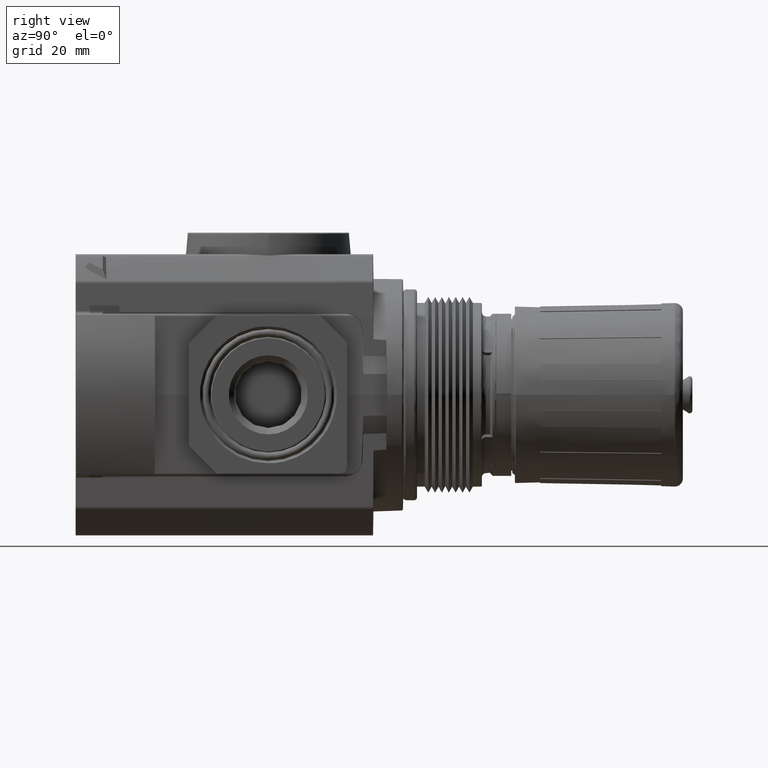
[diagram: clean part render]
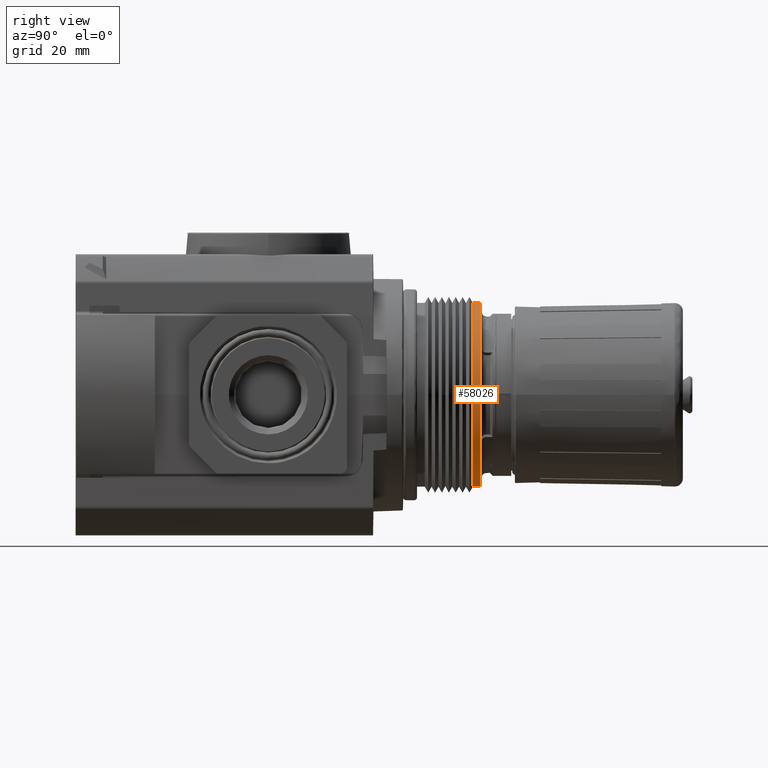
[diagram: same view with one face highlighted and labeled with its STEP entity id]
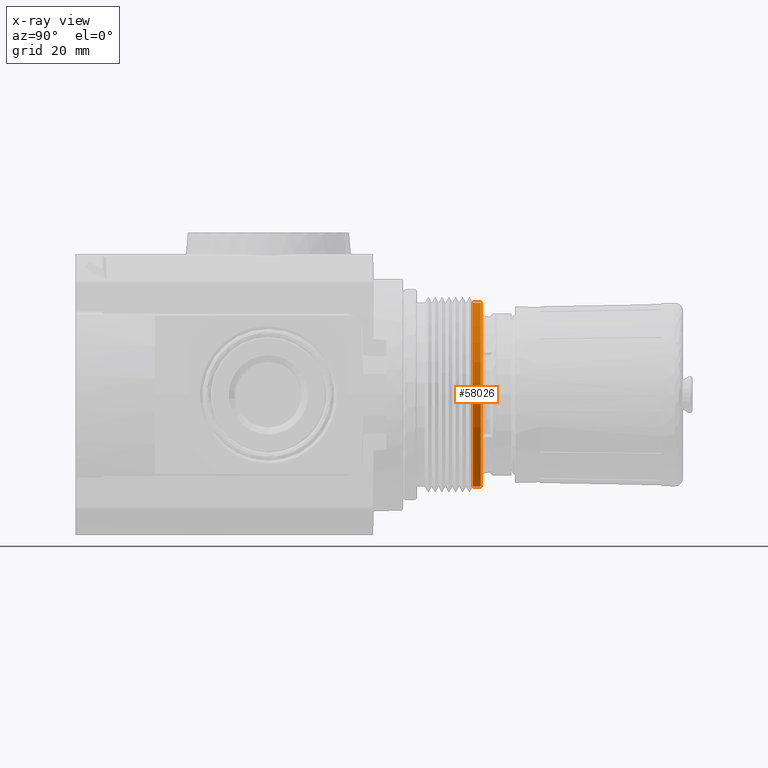
[diagram: x-ray of the same camera — body ghosted, the highlighted face saturated]
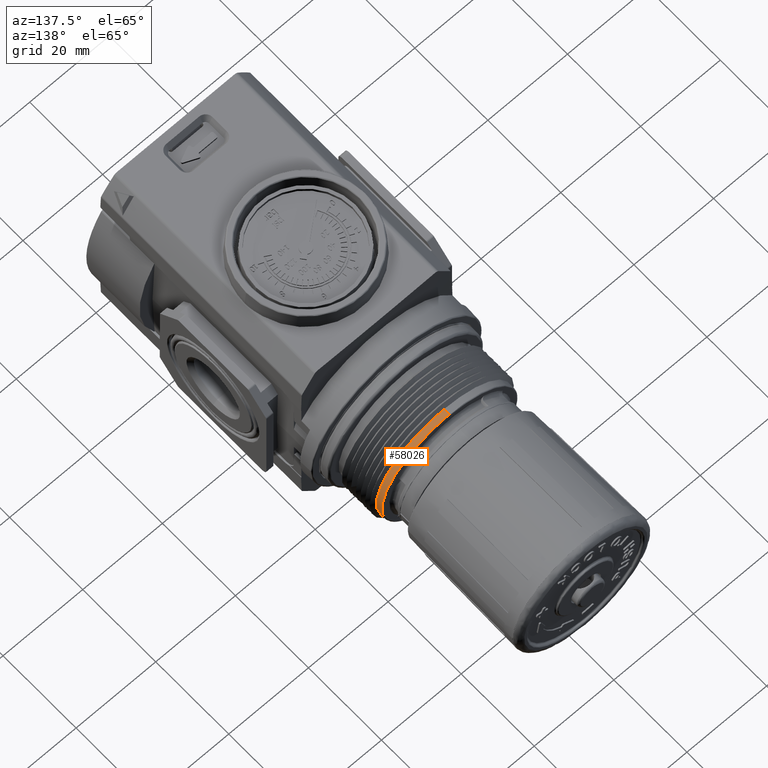
[diagram: same view with one face highlighted and labeled with its STEP entity id]
A machine part, right view. The second image highlights one B-rep face of the part: STEP entity #58026.
The next image is the same camera in x-ray: the body ghosted, the highlighted face saturated — about 0% of this face is hidden behind the body in this view.
A second angle (auxiliary view) of the same face is appended — the face is thin or edge-on in the first view.
In plain terms, the highlighted cylindrical surface (partial cylindrical patch) has radius 17 mm, axis along (-0, 1, 0).
Its self-contained STEP definition (entity closure, byte-faithful):
#3237 = DIRECTION ( 'NONE',  ( -0.000000000000000000, 1.000000000000000000, 0.000000000000000000 ) ) ;
#4351 = FACE_OUTER_BOUND ( 'NONE', #40795, .T. ) ;
#5356 = DIRECTION ( 'NONE',  ( -0.000000000000000000, 1.000000000000000000, 0.000000000000000000 ) ) ;
#5661 = EDGE_CURVE ( 'NONE', #59638, #20913, #60652, .T. ) ;
#8447 = DIRECTION ( 'NONE',  ( 0.000000000000000000, 0.000000000000000000, -1.000000000000000000 ) ) ;
#11213 = AXIS2_PLACEMENT_3D ( 'NONE', #48468, #14113, #8447 ) ;
#11580 = LINE ( 'NONE', #34600, #48883 ) ;
#14113 = DIRECTION ( 'NONE',  ( -0.000000000000000000, 1.000000000000000000, 0.000000000000000000 ) ) ;
#15062 = AXIS2_PLACEMENT_3D ( 'NONE', #26253, #3237, #54938 ) ;
#19031 = VERTEX_POINT ( 'NONE', #67123 ) ;
#19920 = EDGE_CURVE ( 'NONE', #55751, #19031, #54592, .T. ) ;
#20310 = CARTESIAN_POINT ( 'NONE',  ( 0.000000000000000000, 2.893153891709122405, 0.000000000000000000 ) ) ;
#20913 = VERTEX_POINT ( 'NONE', #56167 ) ;
#22386 = ORIENTED_EDGE ( 'NONE', *, *, #44724, .T. ) ;
#26253 = CARTESIAN_POINT ( 'NONE',  ( 0.000000000000000000, 1.983464566929133976, 0.000000000000000000 ) ) ;
#28106 = AXIS2_PLACEMENT_3D ( 'NONE', #20310, #43330, #66393 ) ;
#33025 = CYLINDRICAL_SURFACE ( 'NONE', #15062, 0.6692913385826771977 ) ;
#34600 = CARTESIAN_POINT ( 'NONE',  ( 8.196454954923230515E-17, 1.983464566929133976, -0.6692913385826771977 ) ) ;
#40795 = EDGE_LOOP ( 'NONE', ( #54910, #22386, #51740, #72001 ) ) ;
#42788 = EDGE_CURVE ( 'NONE', #59638, #55751, #45723, .T. ) ;
#43330 = DIRECTION ( 'NONE',  ( -0.000000000000000000, 1.000000000000000000, 0.000000000000000000 ) ) ;
#44724 = EDGE_CURVE ( 'NONE', #20913, #19031, #11580, .T. ) ;
#45723 = LINE ( 'NONE', #51021, #74104 ) ;
#48468 = CARTESIAN_POINT ( 'NONE',  ( 0.000000000000000000, 2.950787401574803237, 0.000000000000000000 ) ) ;
#48883 = VECTOR ( 'NONE', #50854, 39.37007874015748143 ) ;
#50854 = DIRECTION ( 'NONE',  ( -0.000000000000000000, 1.000000000000000000, 0.000000000000000000 ) ) ;
#51021 = CARTESIAN_POINT ( 'NONE',  ( 0.000000000000000000, 1.983464566929133976, 0.6692913385826771977 ) ) ;
#51740 = ORIENTED_EDGE ( 'NONE', *, *, #19920, .F. ) ;
#54592 = CIRCLE ( 'NONE', #11213, 0.6692913385826771977 ) ;
#54910 = ORIENTED_EDGE ( 'NONE', *, *, #5661, .T. ) ;
#54938 = DIRECTION ( 'NONE',  ( 0.000000000000000000, 0.000000000000000000, 1.000000000000000000 ) ) ;
#55751 = VERTEX_POINT ( 'NONE', #59733 ) ;
#56167 = CARTESIAN_POINT ( 'NONE',  ( 8.196454954923230515E-17, 2.893153891709122405, -0.6692913385826771977 ) ) ;
#58026 = ADVANCED_FACE ( 'NONE', ( #4351 ), #33025, .T. ) ;
#59638 = VERTEX_POINT ( 'NONE', #71500 ) ;
#59733 = CARTESIAN_POINT ( 'NONE',  ( 0.000000000000000000, 2.950787401574803237, 0.6692913385826771977 ) ) ;
#60652 = CIRCLE ( 'NONE', #28106, 0.6692913385826771977 ) ;
#66393 = DIRECTION ( 'NONE',  ( 0.000000000000000000, 0.000000000000000000, 1.000000000000000000 ) ) ;
#67123 = CARTESIAN_POINT ( 'NONE',  ( 8.196454954923230515E-17, 2.950787401574803237, -0.6692913385826771977 ) ) ;
#71500 = CARTESIAN_POINT ( 'NONE',  ( 8.461634379937024346E-17, 2.893153891709122405, 0.6692913385826771977 ) ) ;
#72001 = ORIENTED_EDGE ( 'NONE', *, *, #42788, .F. ) ;
#74104 = VECTOR ( 'NONE', #5356, 39.37007874015748143 ) ;